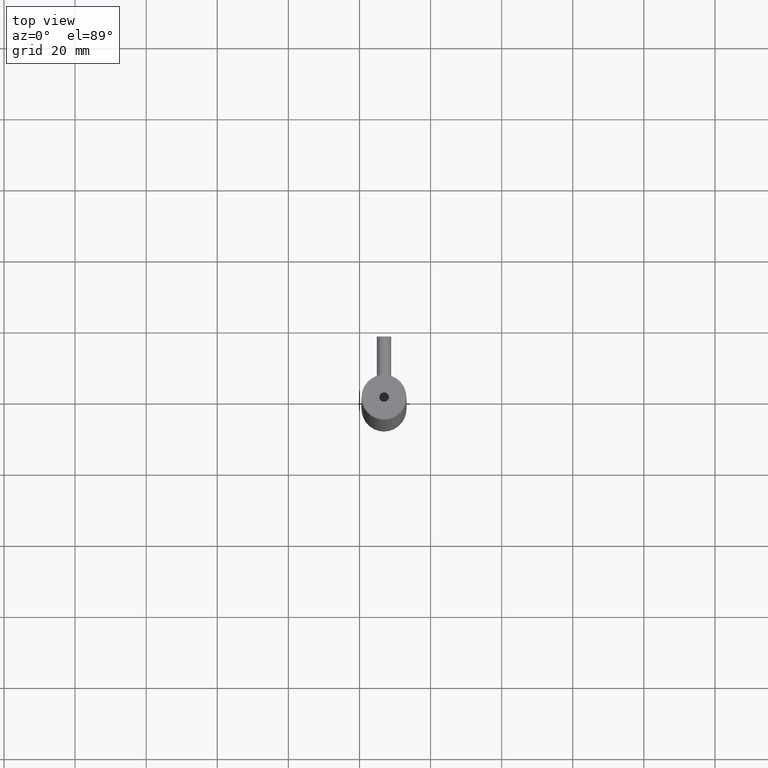
[diagram: clean part render]
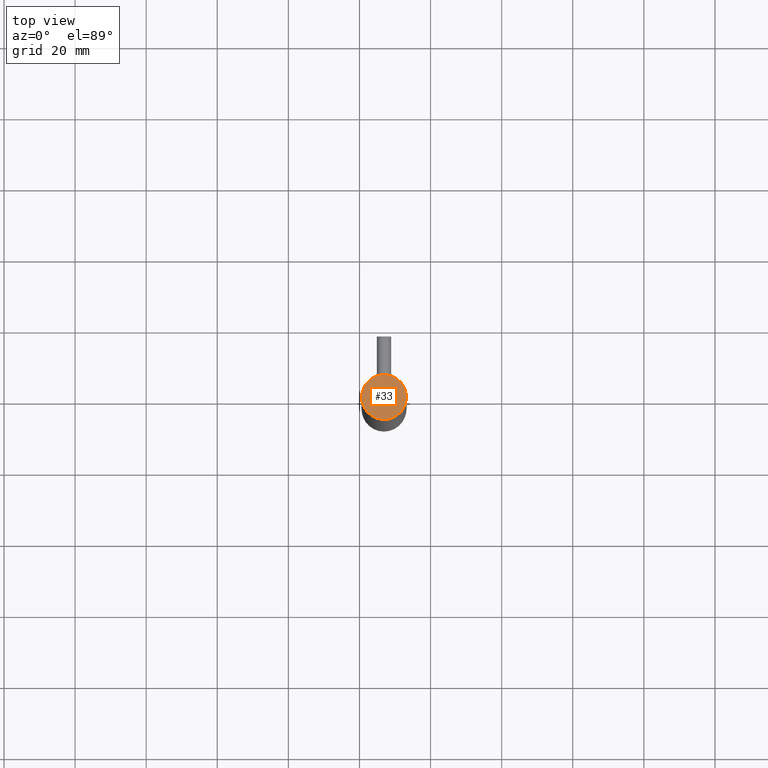
[diagram: same view with one face highlighted and labeled with its STEP entity id]
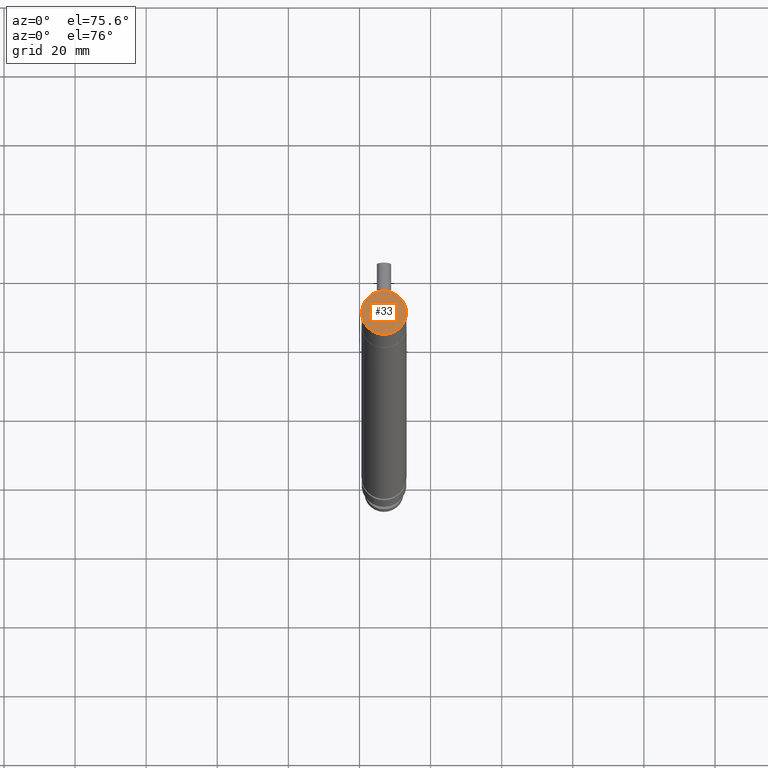
[diagram: same view with one face highlighted and labeled with its STEP entity id]
A machine part, top view. The second image highlights one B-rep face of the part: STEP entity #33.
A second angle (auxiliary view) of the same face is appended — the face is thin or edge-on in the first view.
In plain terms, the highlighted planar face has unit normal (0, 0, 1).
Its self-contained STEP definition (entity closure, byte-faithful):
#32 = ORIENTED_EDGE ( 'NONE', *, *, #53, .T. ) ;
#33 = ADVANCED_FACE ( 'NONE', ( #453, #452 ), #485, .T. ) ;
#34 = EDGE_LOOP ( 'NONE', ( #35, #36 ) ) ;
#35 = ORIENTED_EDGE ( 'NONE', *, *, #40, .F. ) ;
#36 = ORIENTED_EDGE ( 'NONE', *, *, #89, .F. ) ;
#40 = EDGE_CURVE ( 'NONE', #90, #115, #475, .T. ) ;
#41 = EDGE_LOOP ( 'NONE', ( #32, #43 ) ) ;
#43 = ORIENTED_EDGE ( 'NONE', *, *, #44, .T. ) ;
#44 = EDGE_CURVE ( 'NONE', #51, #54, #517, .T. ) ;
#51 = VERTEX_POINT ( 'NONE', #578 ) ;
#53 = EDGE_CURVE ( 'NONE', #54, #51, #577, .T. ) ;
#54 = VERTEX_POINT ( 'NONE', #572 ) ;
#89 = EDGE_CURVE ( 'NONE', #115, #90, #790, .T. ) ;
#90 = VERTEX_POINT ( 'NONE', #786 ) ;
#115 = VERTEX_POINT ( 'NONE', #864 ) ;
#452 = FACE_OUTER_BOUND ( 'NONE', #41, .T. ) ;
#453 = FACE_BOUND ( 'NONE', #34, .T. ) ;
#475 = CIRCLE ( 'NONE', #522, 0.05325000000000004000 ) ;
#481 = DIRECTION ( 'NONE',  ( 1.000000000000000000, 5.200131019955375800E-046, 0.0000000000000000000 ) ) ;
#482 = DIRECTION ( 'NONE',  ( 0.0000000000000000000, 0.0000000000000000000, 1.000000000000000000 ) ) ;
#483 = CARTESIAN_POINT ( 'NONE',  ( -1.303146961860187600, -1.638825475584408900, 1.652433764849119000 ) ) ;
#484 = AXIS2_PLACEMENT_3D ( 'NONE', #483, #482, #481 ) ;
#485 = PLANE ( 'NONE',  #484 ) ;
#513 = DIRECTION ( 'NONE',  ( 1.000000000000000000, 0.0000000000000000000, 0.0000000000000000000 ) ) ;
#514 = DIRECTION ( 'NONE',  ( 0.0000000000000000000, 0.0000000000000000000, 1.000000000000000000 ) ) ;
#515 = CARTESIAN_POINT ( 'NONE',  ( -1.303146961860187600, -1.638825475584408900, 1.652433764849119000 ) ) ;
#516 = AXIS2_PLACEMENT_3D ( 'NONE', #515, #514, #513 ) ;
#517 = CIRCLE ( 'NONE', #516, 0.2480314960629921300 ) ;
#519 = DIRECTION ( 'NONE',  ( 1.000000000000000000, 0.0000000000000000000, 0.0000000000000000000 ) ) ;
#520 = DIRECTION ( 'NONE',  ( 0.0000000000000000000, 0.0000000000000000000, 1.000000000000000000 ) ) ;
#521 = CARTESIAN_POINT ( 'NONE',  ( -1.303146961860187600, -1.638825475584408900, 1.652433764849119000 ) ) ;
#522 = AXIS2_PLACEMENT_3D ( 'NONE', #521, #520, #519 ) ;
#572 = CARTESIAN_POINT ( 'NONE',  ( -1.055115465797195500, -1.638825475584408900, 1.652433764849119000 ) ) ;
#573 = DIRECTION ( 'NONE',  ( 1.000000000000000000, 0.0000000000000000000, 0.0000000000000000000 ) ) ;
#574 = DIRECTION ( 'NONE',  ( 0.0000000000000000000, 0.0000000000000000000, 1.000000000000000000 ) ) ;
#575 = CARTESIAN_POINT ( 'NONE',  ( -1.303146961860187600, -1.638825475584408900, 1.652433764849119000 ) ) ;
#576 = AXIS2_PLACEMENT_3D ( 'NONE', #575, #574, #573 ) ;
#577 = CIRCLE ( 'NONE', #576, 0.2480314960629921300 ) ;
#578 = CARTESIAN_POINT ( 'NONE',  ( -1.551178457923179800, -1.638825475584408900, 1.652433764849119000 ) ) ;
#786 = CARTESIAN_POINT ( 'NONE',  ( -1.249896961860187600, -1.638825475584408900, 1.652433764849119000 ) ) ;
#787 = DIRECTION ( 'NONE',  ( 1.000000000000000000, 0.0000000000000000000, 0.0000000000000000000 ) ) ;
#788 = DIRECTION ( 'NONE',  ( 0.0000000000000000000, 0.0000000000000000000, 1.000000000000000000 ) ) ;
#789 = AXIS2_PLACEMENT_3D ( 'NONE', #795, #788, #787 ) ;
#790 = CIRCLE ( 'NONE', #789, 0.05325000000000004000 ) ;
#795 = CARTESIAN_POINT ( 'NONE',  ( -1.303146961860187600, -1.638825475584408900, 1.652433764849119000 ) ) ;
#864 = CARTESIAN_POINT ( 'NONE',  ( -1.356396961860187700, -1.638825475584408900, 1.652433764849119000 ) ) ;